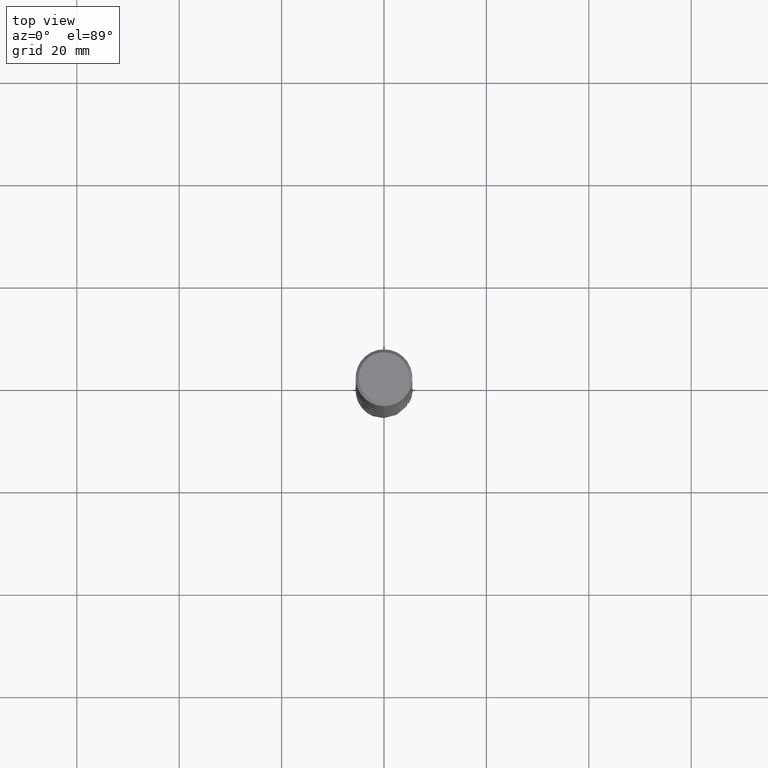
[diagram: clean part render]
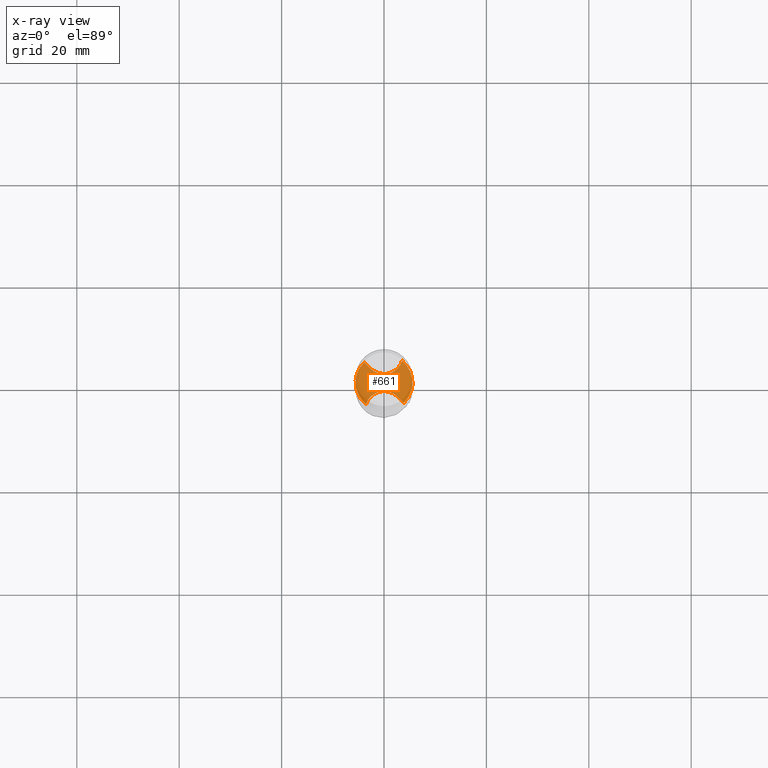
[diagram: x-ray — body ghosted, one internal face saturated and labeled with its STEP entity id]
A machine part, top view, then the same camera in x-ray: the body is ghosted and one INTERNAL B-rep face — a face not visible from any outside direction — is saturated and labeled: STEP entity #661.
In plain terms, the highlighted planar face has unit normal (-0, 0, 1).
Its self-contained STEP definition (entity closure, byte-faithful):
#317=VERTEX_POINT('',#804);
#375=VERTEX_POINT('',#870);
#463=EDGE_CURVE('',#317,#375,#968,.T.);
#475=VERTEX_POINT('',#980);
#553=EDGE_CURVE('',#615,#557,#1064,.T.);
#557=VERTEX_POINT('',#1068);
#581=VERTEX_POINT('',#1094);
#615=VERTEX_POINT('',#1131);
#655=EDGE_CURVE('',#475,#317,#1172,.T.);
#661=ADVANCED_FACE('',(#1178),#1179,.T.);
#677=EDGE_CURVE('',#615,#375,#1196,.T.);
#695=EDGE_CURVE('',#475,#581,#1217,.T.);
#705=EDGE_CURVE('',#557,#581,#1228,.T.);
#804=CARTESIAN_POINT('',(-2.61942009031952,2.74904521797309,-56.3916));
#870=CARTESIAN_POINT('',(-3.85892852271937,3.98874173976493,-56.3916));
#968=B_SPLINE_CURVE_WITH_KNOTS('',3,(#4080,#4081,#4082,#4083),.UNSPECIFIED.,.F.,.F.,(4,4),(0.0,4.0133454105137),.UNSPECIFIED.);
#980=CARTESIAN_POINT('',(3.53413516858353,4.27916798223452,-56.3916));
#1064=B_SPLINE_CURVE_WITH_KNOTS('',3,(#4821,#4822,#4823,#4824,#4825,#4826,#4827,#4828,#4829,#4830,#4831,#4832,#4833,#4834,#4835,#4836),.UNSPECIFIED.,.F.,.F.,(4,2,2,2,2,2,2,4),(0.0,1.44532068947082,2.89047477952261,4.33560240753625,5.78082487512963,7.22620768807048,8.10215794620742,8.97812322822944),.UNSPECIFIED.);
#1068=CARTESIAN_POINT('',(2.61942009031952,-2.7490452179731,-56.3916));
#1094=CARTESIAN_POINT('',(3.85892852271936,-3.98874173976493,-56.3916));
#1131=CARTESIAN_POINT('',(-3.53413516858353,-4.27916798223452,-56.3916));
#1172=B_SPLINE_CURVE_WITH_KNOTS('',3,(#6613,#6614,#6615,#6616,#6617,#6618,#6619,#6620,#6621,#6622,#6623,#6624,#6625,#6626,#6627,#6628),.UNSPECIFIED.,.F.,.F.,(4,2,2,2,2,2,2,4),(0.0,1.44532068947079,2.89047477952252,4.33560240753613,5.78082487512952,7.22620768807038,8.10215794620731,8.97812322822928),.UNSPECIFIED.);
#1178=FACE_OUTER_BOUND('',#6656,.T.);
#1179=PLANE('',#6657);
#1196=CIRCLE('',#7976,5.5499);
#1217=CIRCLE('',#8002,5.5499);
#1228=B_SPLINE_CURVE_WITH_KNOTS('',3,(#8020,#8021,#8022,#8023),.UNSPECIFIED.,.F.,.F.,(4,4),(0.0,4.01334541013309),.UNSPECIFIED.);
#4080=CARTESIAN_POINT('',(-2.61942009039023,2.7490452179024,-56.3916));
#4081=CARTESIAN_POINT('',(-3.56530660112185,3.69506787228437,-56.3916));
#4082=CARTESIAN_POINT('',(-4.52326273971158,4.65317793916124,-56.3916));
#4083=CARTESIAN_POINT('',(-5.46980950978936,5.5999,-56.3916));
#4821=CARTESIAN_POINT('',(-3.6893944194781,-5.5999,-56.3916));
#4822=CARTESIAN_POINT('',(-3.72005421220386,-5.11910301241902,-56.3916));
#4823=CARTESIAN_POINT('',(-3.65651233152984,-4.63691714272217,-56.3916));
#4824=CARTESIAN_POINT('',(-3.34817262611512,-3.7240981365532,-56.3916));
#4825=CARTESIAN_POINT('',(-3.10634536150509,-3.30219219821531,-56.3916));
#4826=CARTESIAN_POINT('',(-2.47457697830529,-2.5748305235835,-56.3916));
#4827=CARTESIAN_POINT('',(-2.09068248808323,-2.27633110571476,-56.3916));
#4828=CARTESIAN_POINT('',(-1.23005270986611,-1.84326303291354,-56.3916));
#4829=CARTESIAN_POINT('',(-0.761543280133894,-1.71284720234495,-56.3916));
#4830=CARTESIAN_POINT('',(0.199151251530212,-1.63892266084991,-56.3916));
#4831=CARTESIAN_POINT('',(0.682152365775975,-1.69614134780943,-56.3916));
#4832=CARTESIAN_POINT('',(1.41843020434261,-1.93410889939063,-56.3916));
#4833=CARTESIAN_POINT('',(1.68466113269925,-2.05647522797609,-56.3916));
#4834=CARTESIAN_POINT('',(2.18280354177576,-2.36123489210072,-56.3916));
#4835=CARTESIAN_POINT('',(2.41296907379227,-2.54256145069563,-56.3916));
#4836=CARTESIAN_POINT('',(2.61942009031952,-2.74904521797311,-56.3916));
#6613=CARTESIAN_POINT('',(3.68939441947809,5.5999,-56.3916));
#6614=CARTESIAN_POINT('',(3.72005421220385,5.11910301241903,-56.3916));
#6615=CARTESIAN_POINT('',(3.65651233152985,4.63691714272217,-56.3916));
#6616=CARTESIAN_POINT('',(3.34817262611512,3.7240981365532,-56.3916));
#6617=CARTESIAN_POINT('',(3.10634536150509,3.3021921982153,-56.3916));
#6618=CARTESIAN_POINT('',(2.47457697830529,2.57483052358349,-56.3916));
#6619=CARTESIAN_POINT('',(2.09068248808321,2.27633110571474,-56.3916));
#6620=CARTESIAN_POINT('',(1.2300527098661,1.84326303291354,-56.3916));
#6621=CARTESIAN_POINT('',(0.761543280133889,1.71284720234494,-56.3916));
#6622=CARTESIAN_POINT('',(-0.199151251530217,1.63892266084991,-56.3916));
#6623=CARTESIAN_POINT('',(-0.682152365775981,1.69614134780943,-56.3916));
#6624=CARTESIAN_POINT('',(-1.4184302043426,1.93410889939062,-56.3916));
#6625=CARTESIAN_POINT('',(-1.68466113269923,2.05647522797607,-56.3916));
#6626=CARTESIAN_POINT('',(-2.18280354177577,2.36123489210072,-56.3916));
#6627=CARTESIAN_POINT('',(-2.41296907379229,2.54256145069564,-56.3916));
#6628=CARTESIAN_POINT('',(-2.61942009031952,2.7490452179731,-56.3916));
#6656=EDGE_LOOP('',(#8680,#8681,#8682,#8683,#8684,#8685));
#6657=AXIS2_PLACEMENT_3D('',#8686,#8687,#8688);
#7976=AXIS2_PLACEMENT_3D('',#8705,#8706,#8707);
#8002=AXIS2_PLACEMENT_3D('',#8754,#8755,#8756);
#8020=CARTESIAN_POINT('',(2.61942009039023,-2.74904521790241,-56.3916));
#8021=CARTESIAN_POINT('',(3.56530660103214,-3.69506787219465,-56.3916));
#8022=CARTESIAN_POINT('',(4.5232627396836,-4.65317793913326,-56.3916));
#8023=CARTESIAN_POINT('',(5.46980950978936,-5.5999,-56.3916));
#8680=ORIENTED_EDGE('',*,*,#705,.T.);
#8681=ORIENTED_EDGE('',*,*,#695,.F.);
#8682=ORIENTED_EDGE('',*,*,#655,.T.);
#8683=ORIENTED_EDGE('',*,*,#463,.T.);
#8684=ORIENTED_EDGE('',*,*,#677,.F.);
#8685=ORIENTED_EDGE('',*,*,#553,.T.);
#8686=CARTESIAN_POINT('',(0.0,2.77495,-56.3916));
#8687=DIRECTION('',(-0.0,0.0,1.0));
#8688=DIRECTION('',(0.0,-1.0,0.0));
#8705=CARTESIAN_POINT('',(0.0,0.0,-56.3916));
#8706=DIRECTION('',(0.0,0.0,-1.0));
#8707=DIRECTION('',(0.0,1.0,0.0));
#8754=CARTESIAN_POINT('',(0.0,0.0,-56.3916));
#8755=DIRECTION('',(0.0,0.0,-1.0));
#8756=DIRECTION('',(0.0,1.0,0.0));